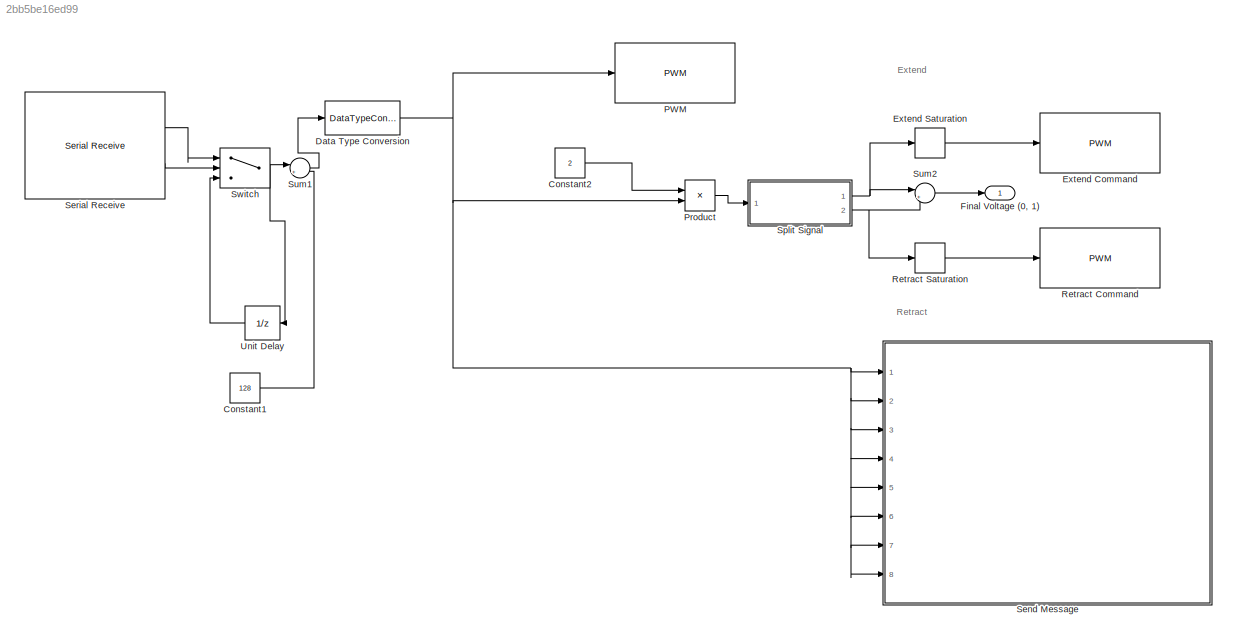
MODEL slx_2bb5be16ed99
KIND model
BLOCK [Constant] Constant1
  Value = 128
BLOCK [Constant] Constant2
  Value = 2
BLOCK [DataTypeConversion] Data Type Conversion
  RndMeth = Floor
BLOCK [Reference] Extend Command  REF=arduinolib/PWM
  Ports = [1]
  SourceBlock = arduinolib/PWM
  SourceType = Arduino PWM
  pinNumber = 2
BLOCK [MinMax] Extend Saturation
  Function = max
  InputSameDT = off
  OutDataTypeStr = int16
  OutMax = [255]
  OutMin = [0]
  Ports = [1, 1]
BLOCK [Outport] Final Voltage (0, 1)
  IconDisplay = Port number
BLOCK [Reference] PWM  REF=arduinolib/PWM
  Ports = [1]
  SourceBlock = arduinolib/PWM
  SourceType = Arduino PWM
  pinNumber = 5
BLOCK [Product] Product
  InputSameDT = off
  OutDataTypeStr = Inherit: Inherit via internal rule
  Ports = [2, 1]
  RndMeth = Floor
  SaturateOnIntegerOverflow = off
BLOCK [Reference] Retract Command  REF=arduinolib/PWM
  Ports = [1]
  SourceBlock = arduinolib/PWM
  SourceType = Arduino PWM
  pinNumber = 4
BLOCK [MinMax] Retract Saturation
  Function = max
  InputSameDT = off
  OutDataTypeStr = int16
  OutMax = [255]
  OutMin = [0]
  Ports = [1, 1]
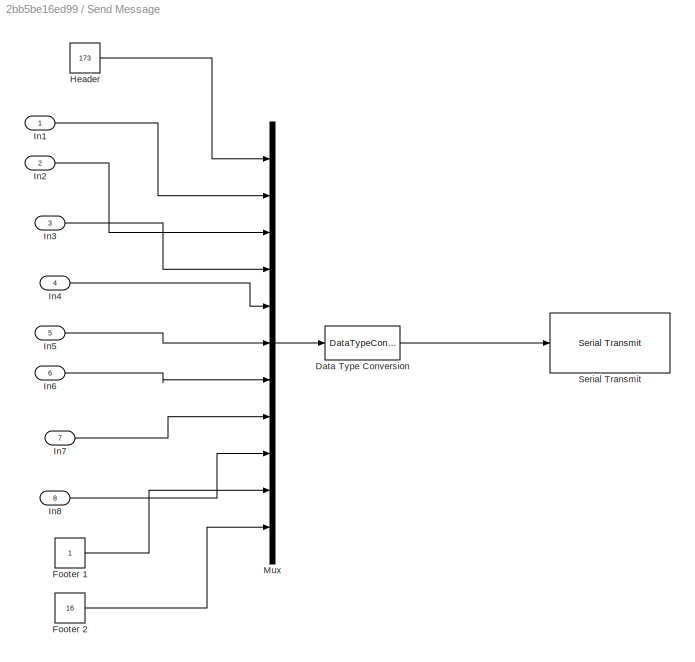
BLOCK [SubSystem] Send Message
  Ports = [8]
  RequestExecContextInheritance = off
BLOCK [DataTypeConversion] Send Message/Data Type Conversion
  RndMeth = Floor
BLOCK [Constant] Send Message/Footer 1
BLOCK [Constant] Send Message/Footer 2
  Value = 16
BLOCK [Constant] Send Message/Header
  Value = 173
BLOCK [Inport] Send Message/In1
  IconDisplay = Port number
BLOCK [Inport] Send Message/In2
  IconDisplay = Port number
  Port = 2
BLOCK [Inport] Send Message/In3
  IconDisplay = Port number
  Port = 3
BLOCK [Inport] Send Message/In4
  IconDisplay = Port number
  Port = 4
BLOCK [Inport] Send Message/In5
  IconDisplay = Port number
  Port = 5
BLOCK [Inport] Send Message/In6
  IconDisplay = Port number
  Port = 6
BLOCK [Inport] Send Message/In7
  IconDisplay = Port number
  Port = 7
BLOCK [Inport] Send Message/In8
  IconDisplay = Port number
  Port = 8
BLOCK [Mux] Send Message/Mux
  DisplayOption = bar
  Inputs = 11
  Ports = [11, 1]
BLOCK [Reference] Send Message/Serial Transmit  REF=arduinolib/Serial Transmit
  Ports = [1]
  SourceBlock = arduinolib/Serial Transmit
  SourceType = Arduino Serial Transmit
  portNumber = 1
BLOCK [Reference] Serial Receive  REF=arduinolib/Serial Receive
  Ports = [0, 2]
  SourceBlock = arduinolib/Serial Receive
  SourceType = Arduino Serial Receive
  portNumber = 1
  sampleTime = .02
  showOutStatus = on
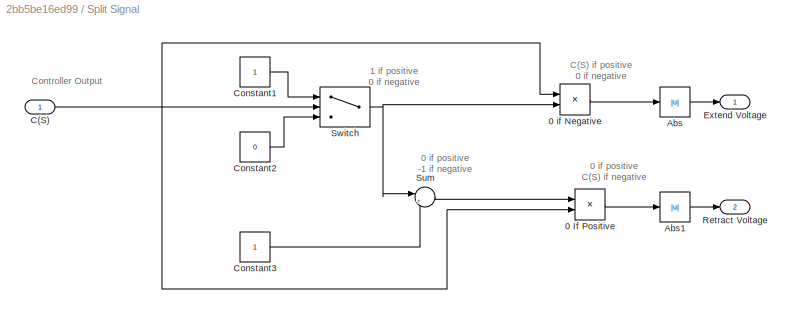
BLOCK [SubSystem] Split Signal
  Ports = [1, 2]
  RequestExecContextInheritance = off
BLOCK [Product] Split Signal/0 If Positive
  InputSameDT = off
  OutDataTypeStr = Inherit: Inherit via internal rule
  Ports = [2, 1]
  RndMeth = Floor
  SaturateOnIntegerOverflow = off
BLOCK [Product] Split Signal/0 if Negative
  InputSameDT = off
  OutDataTypeStr = Inherit: Inherit via internal rule
  Ports = [2, 1]
  RndMeth = Floor
  SaturateOnIntegerOverflow = off
BLOCK [Abs] Split Signal/Abs
  SaturateOnIntegerOverflow = off
BLOCK [Abs] Split Signal/Abs1
  SaturateOnIntegerOverflow = off
BLOCK [Inport] Split Signal/C(S)
  IconDisplay = Port number
BLOCK [Constant] Split Signal/Constant1
BLOCK [Constant] Split Signal/Constant2
  Value = 0
BLOCK [Constant] Split Signal/Constant3
BLOCK [Outport] Split Signal/Extend Voltage
  IconDisplay = Port number
BLOCK [Outport] Split Signal/Retract Voltage
  IconDisplay = Port number
  Port = 2
BLOCK [Sum] Split Signal/Sum
  IconShape = round
  InputSameDT = off
  Inputs = |+-
  OutDataTypeStr = Inherit: Inherit via internal rule
  Ports = [2, 1]
  SaturateOnIntegerOverflow = off
BLOCK [Switch] Split Signal/Switch
  InputSameDT = off
  SaturateOnIntegerOverflow = off
BLOCK [Sum] Sum1
  IconShape = round
  InputSameDT = off
  Inputs = |+-
  OutDataTypeStr = Inherit: Inherit via internal rule
  Ports = [2, 1]
  SaturateOnIntegerOverflow = off
BLOCK [Sum] Sum2
  IconShape = round
  InputSameDT = off
  Inputs = |++
  OutDataTypeStr = Inherit: Inherit via internal rule
  Ports = [2, 1]
  SaturateOnIntegerOverflow = off
BLOCK [Switch] Switch
  Criteria = u2 > Threshold
  InputSameDT = off
  SaturateOnIntegerOverflow = off
BLOCK [UnitDelay] Unit Delay
  InputProcessing = Elements as channels (sample based)
  SampleTime = -1
ANNOTATION (root): Extend
ANNOTATION (root): Retract
ANNOTATION Split Signal: 0 if positive -1 if negative
ANNOTATION Split Signal: 0 if positive C(S) if negative
ANNOTATION Split Signal: 1 if positive 0 if negative
ANNOTATION Split Signal: C(S) if positive 0 if negative
ANNOTATION Split Signal: Controller Output
LINE Constant1:1 -> Sum1:2
LINE Constant2:1 -> Product:1
NET Data Type Conversion:1 -> PWM:1, Product:2, Send Message:1, Send Message:2, Send Message:3, Send Message:4, Send Message:5, Send Message:6, Send Message:7, Send Message:8
LINE Extend Saturation:1 -> Extend Command:1
LINE Product:1 -> Split Signal:1
LINE Retract Saturation:1 -> Retract Command:1
LINE Send Message/Data Type Conversion:1 -> Send Message/Serial Transmit:1
LINE Send Message/Footer 1:1 -> Send Message/Mux:10
LINE Send Message/Footer 2:1 -> Send Message/Mux:11
LINE Send Message/Header:1 -> Send Message/Mux:1
LINE Send Message/In1:1 -> Send Message/Mux:2
LINE Send Message/In2:1 -> Send Message/Mux:3
LINE Send Message/In3:1 -> Send Message/Mux:4
LINE Send Message/In4:1 -> Send Message/Mux:5
LINE Send Message/In5:1 -> Send Message/Mux:6
LINE Send Message/In6:1 -> Send Message/Mux:7
LINE Send Message/In7:1 -> Send Message/Mux:8
LINE Send Message/In8:1 -> Send Message/Mux:9
LINE Send Message/Mux:1 -> Send Message/Data Type Conversion:1
LINE Serial Receive:1 -> Switch:1
LINE Serial Receive:2 -> Switch:2
LINE Split Signal/0 If Positive:1 -> Split Signal/Abs1:1
LINE Split Signal/0 if Negative:1 -> Split Signal/Abs:1
LINE Split Signal/Abs1:1 -> Split Signal/Retract Voltage:1
LINE Split Signal/Abs:1 -> Split Signal/Extend Voltage:1
NET Split Signal/C(S):1 -> Split Signal/0 If Positive:2, Split Signal/0 if Negative:1, Split Signal/Switch:2
LINE Split Signal/Constant1:1 -> Split Signal/Switch:1
LINE Split Signal/Constant2:1 -> Split Signal/Switch:3
LINE Split Signal/Constant3:1 -> Split Signal/Sum:2
LINE Split Signal/Sum:1 -> Split Signal/0 If Positive:1
NET Split Signal/Switch:1 -> Split Signal/0 if Negative:2, Split Signal/Sum:1
NET Split Signal:1 -> Extend Saturation:1, Sum2:1
NET Split Signal:2 -> Retract Saturation:1, Sum2:2
LINE Sum1:1 -> Data Type Conversion:1
LINE Sum2:1 -> Final Voltage (0, 1):1
NET Switch:1 -> Sum1:1, Unit Delay:1
LINE Unit Delay:1 -> Switch:3
note: NET lines group one-source signal fan-out (src -> all destinations, sorted); 1:1 wires keep LINE
